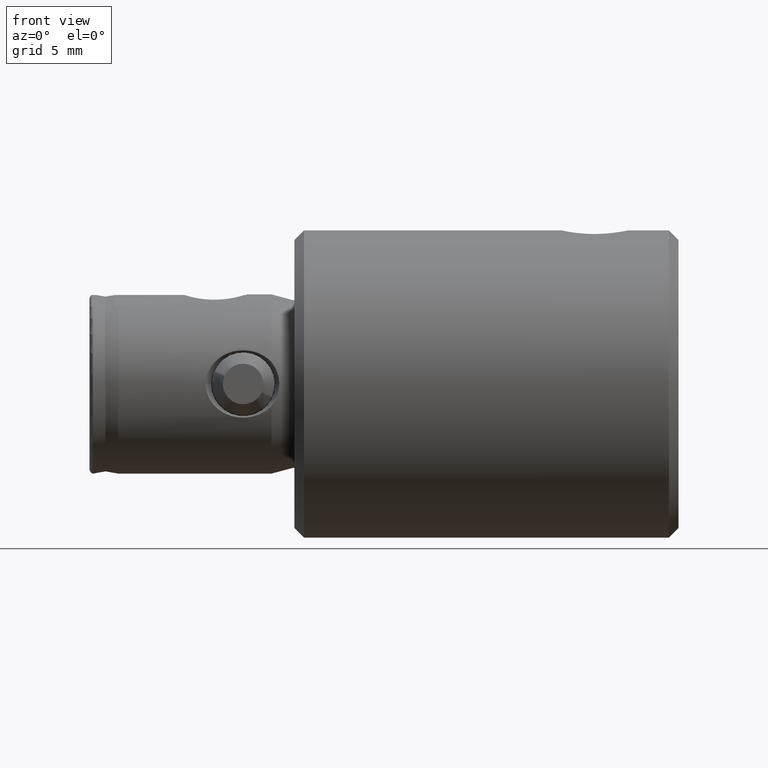
[diagram: clean part render]
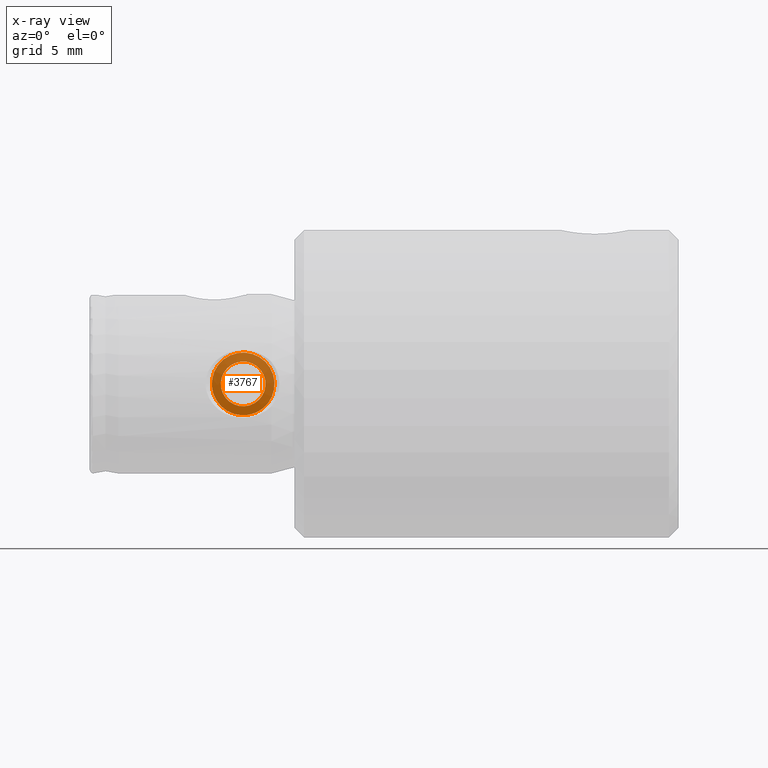
[diagram: x-ray — body ghosted, one internal face saturated and labeled with its STEP entity id]
A machine part, front view, then the same camera in x-ray: the body is ghosted and one INTERNAL B-rep face — a face not visible from any outside direction — is saturated and labeled: STEP entity #3767.
In plain terms, the highlighted planar face has unit normal (0, 1, -0).
Its self-contained STEP definition (entity closure, byte-faithful):
#17 = CIRCLE ( 'NONE', #725, 1.750000000000000000 ) ;
#28 = DIRECTION ( 'NONE',  ( -1.000000000000000000, -1.736302482672550400E-016, -0.0000000000000000000 ) ) ;
#150 = AXIS2_PLACEMENT_3D ( 'NONE', #2003, #28, #2337 ) ;
#239 = CIRCLE ( 'NONE', #2637, 2.449999999999999300 ) ;
#277 = CARTESIAN_POINT ( 'NONE',  ( 7.900000000000000400, -1.749999999999998700, 0.0000000000000000000 ) ) ;
#495 = EDGE_LOOP ( 'NONE', ( #2981, #2788 ) ) ;
#533 = EDGE_CURVE ( 'NONE', #4216, #3076, #239, .T. ) ;
#725 = AXIS2_PLACEMENT_3D ( 'NONE', #1597, #3884, #1925 ) ;
#828 = CARTESIAN_POINT ( 'NONE',  ( 7.900000000000000400, 3.000384657911017300E-016, -2.449999999999999300 ) ) ;
#871 = AXIS2_PLACEMENT_3D ( 'NONE', #1612, #3923, #1962 ) ;
#976 = CIRCLE ( 'NONE', #3756, 2.449999999999999300 ) ;
#1185 = ORIENTED_EDGE ( 'NONE', *, *, #1238, .F. ) ;
#1228 = CIRCLE ( 'NONE', #150, 1.750000000000000000 ) ;
#1229 = FACE_BOUND ( 'NONE', #495, .T. ) ;
#1238 = EDGE_CURVE ( 'NONE', #3076, #4216, #976, .T. ) ;
#1310 = EDGE_CURVE ( 'NONE', #3578, #3465, #1228, .T. ) ;
#1442 = FACE_OUTER_BOUND ( 'NONE', #3544, .T. ) ;
#1457 = CARTESIAN_POINT ( 'NONE',  ( 7.900000000000000400, 1.371678961311315000E-015, 0.0000000000000000000 ) ) ;
#1541 = CARTESIAN_POINT ( 'NONE',  ( 7.900000000000000400, 3.851859888774471700E-031, 2.449999999999999300 ) ) ;
#1597 = CARTESIAN_POINT ( 'NONE',  ( 7.900000000000000400, 1.371678961311315000E-015, 0.0000000000000000000 ) ) ;
#1612 = CARTESIAN_POINT ( 'NONE',  ( 7.900000000000000400, 2.450000000000000600, 0.0000000000000000000 ) ) ;
#1632 = PLANE ( 'NONE',  #871 ) ;
#1641 = CARTESIAN_POINT ( 'NONE',  ( 7.900000000000000400, 1.371678961311315000E-015, 0.0000000000000000000 ) ) ;
#1925 = DIRECTION ( 'NONE',  ( 0.0000000000000000000, -1.000000000000000000, 0.0000000000000000000 ) ) ;
#1962 = DIRECTION ( 'NONE',  ( -1.736302482672550400E-016, 1.000000000000000000, 0.0000000000000000000 ) ) ;
#1968 = DIRECTION ( 'NONE',  ( 0.0000000000000000000, -1.000000000000000000, 0.0000000000000000000 ) ) ;
#2003 = CARTESIAN_POINT ( 'NONE',  ( 7.900000000000000400, 1.371678961311315000E-015, 0.0000000000000000000 ) ) ;
#2215 = CARTESIAN_POINT ( 'NONE',  ( 7.900000000000000400, 1.750000000000001300, 2.143131898507868300E-016 ) ) ;
#2337 = DIRECTION ( 'NONE',  ( 0.0000000000000000000, -1.000000000000000000, 0.0000000000000000000 ) ) ;
#2637 = AXIS2_PLACEMENT_3D ( 'NONE', #1457, #3655, #3129 ) ;
#2788 = ORIENTED_EDGE ( 'NONE', *, *, #1310, .T. ) ;
#2942 = ORIENTED_EDGE ( 'NONE', *, *, #533, .F. ) ;
#2981 = ORIENTED_EDGE ( 'NONE', *, *, #3112, .T. ) ;
#3076 = VERTEX_POINT ( 'NONE', #1541 ) ;
#3112 = EDGE_CURVE ( 'NONE', #3465, #3578, #17, .T. ) ;
#3129 = DIRECTION ( 'NONE',  ( 0.0000000000000000000, -1.000000000000000000, 0.0000000000000000000 ) ) ;
#3465 = VERTEX_POINT ( 'NONE', #277 ) ;
#3544 = EDGE_LOOP ( 'NONE', ( #1185, #2942 ) ) ;
#3578 = VERTEX_POINT ( 'NONE', #2215 ) ;
#3655 = DIRECTION ( 'NONE',  ( -1.000000000000000000, -1.736302482672550400E-016, -0.0000000000000000000 ) ) ;
#3756 = AXIS2_PLACEMENT_3D ( 'NONE', #1641, #3928, #1968 ) ;
#3767 = ADVANCED_FACE ( 'NONE', ( #1229, #1442 ), #1632, .T. ) ;
#3884 = DIRECTION ( 'NONE',  ( -1.000000000000000000, -1.736302482672550400E-016, -0.0000000000000000000 ) ) ;
#3923 = DIRECTION ( 'NONE',  ( 1.000000000000000000, 1.736302482672550400E-016, 0.0000000000000000000 ) ) ;
#3928 = DIRECTION ( 'NONE',  ( -1.000000000000000000, -1.736302482672550400E-016, -0.0000000000000000000 ) ) ;
#4216 = VERTEX_POINT ( 'NONE', #828 ) ;